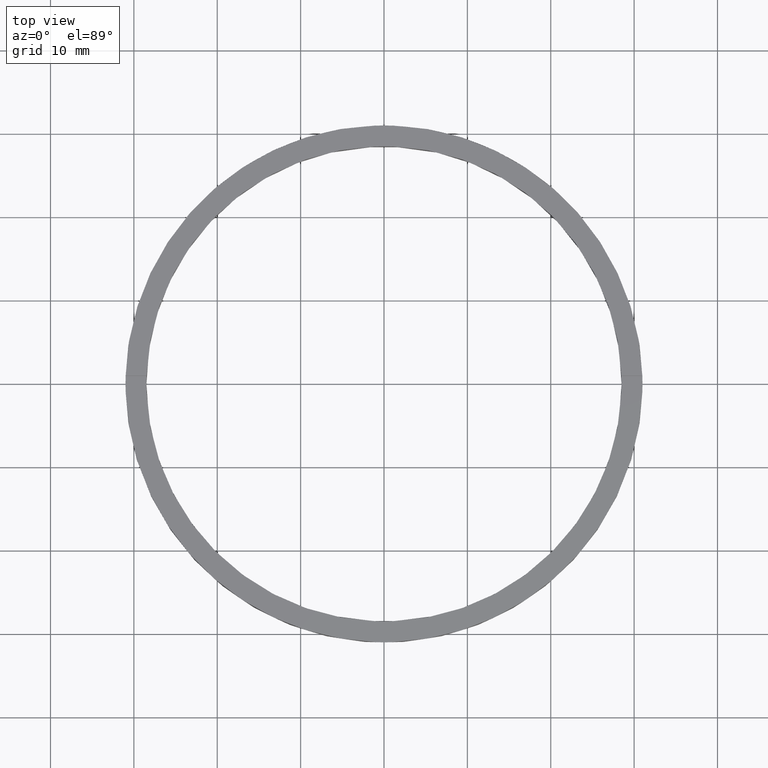
[diagram: clean part render]
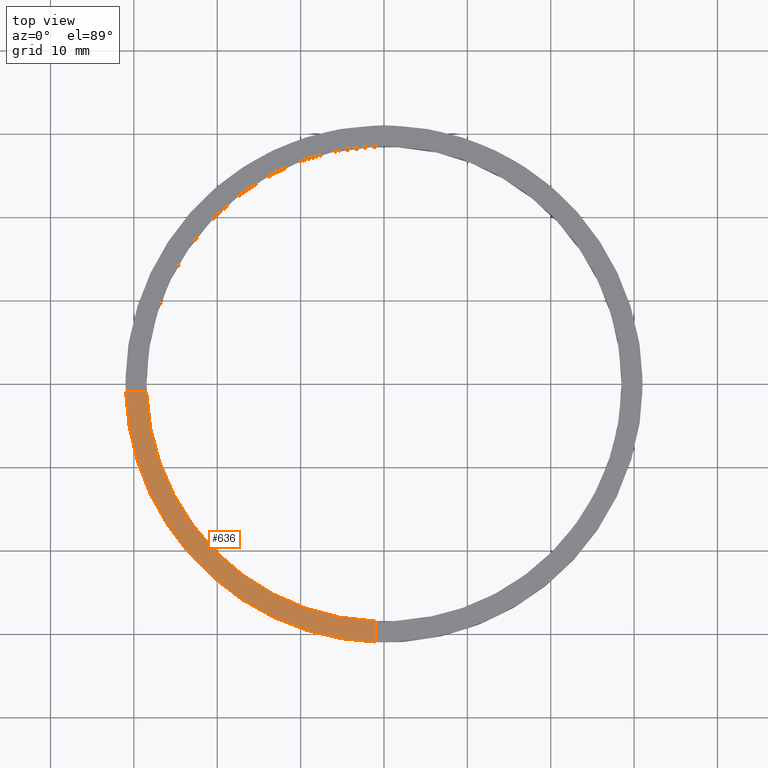
[diagram: same view with one face highlighted and labeled with its STEP entity id]
A machine part, top view. The second image highlights one B-rep face of the part: STEP entity #636.
In plain terms, the highlighted planar face has unit normal (0, 0, 1).
Its self-contained STEP definition (entity closure, byte-faithful):
#16 = CARTESIAN_POINT ( 'NONE',  ( -1.000000000000162759, -21.00000000000017764, 3.000000000000000000 ) ) ;
#24 = AXIS2_PLACEMENT_3D ( 'NONE', #273, #780, #117 ) ;
#69 = VERTEX_POINT ( 'NONE', #466 ) ;
#90 = CARTESIAN_POINT ( 'NONE',  ( -1.000000000000161871, -28.48245073725222554, 3.000000000000000000 ) ) ;
#101 = CARTESIAN_POINT ( 'NONE',  ( -28.48245073725222909, -1.000000000000025091, 3.000000000000000000 ) ) ;
#117 = DIRECTION ( 'NONE',  ( 1.000000000000000000, 0.000000000000000000, 0.000000000000000000 ) ) ;
#125 = EDGE_CURVE ( 'NONE', #397, #654, #288, .T. ) ;
#130 = DIRECTION ( 'NONE',  ( 1.301042606982605074E-16, -1.000000000000000000, 0.000000000000000000 ) ) ;
#161 = VECTOR ( 'NONE', #624, 1000.000000000000000 ) ;
#172 = LINE ( 'NONE', #585, #161 ) ;
#175 = AXIS2_PLACEMENT_3D ( 'NONE', #276, #219, #380 ) ;
#179 = EDGE_CURVE ( 'NONE', #69, #409, #550, .T. ) ;
#219 = DIRECTION ( 'NONE',  ( 0.000000000000000000, 0.000000000000000000, 1.000000000000000000 ) ) ;
#224 = ORIENTED_EDGE ( 'NONE', *, *, #501, .F. ) ;
#273 = CARTESIAN_POINT ( 'NONE',  ( 0.000000000000000000, 0.000000000000000000, 3.000000000000000000 ) ) ;
#274 = CARTESIAN_POINT ( 'NONE',  ( 0.000000000000000000, 0.000000000000000000, 3.000000000000000000 ) ) ;
#276 = CARTESIAN_POINT ( 'NONE',  ( 0.000000000000000000, 0.000000000000000000, 3.000000000000000000 ) ) ;
#288 = CIRCLE ( 'NONE', #175, 28.50000000000000000 ) ;
#377 = DIRECTION ( 'NONE',  ( 0.000000000000000000, 0.000000000000000000, 1.000000000000000000 ) ) ;
#380 = DIRECTION ( 'NONE',  ( 1.000000000000000000, 0.000000000000000000, 0.000000000000000000 ) ) ;
#397 = VERTEX_POINT ( 'NONE', #101 ) ;
#409 = VERTEX_POINT ( 'NONE', #472 ) ;
#410 = EDGE_LOOP ( 'NONE', ( #224, #712, #471, #502 ) ) ;
#433 = VECTOR ( 'NONE', #130, 1000.000000000000000 ) ;
#451 = DIRECTION ( 'NONE',  ( 1.000000000000000000, 0.000000000000000000, -0.000000000000000000 ) ) ;
#466 = CARTESIAN_POINT ( 'NONE',  ( -30.98386676965933617, -1.000000000000025535, 3.000000000000000000 ) ) ;
#471 = ORIENTED_EDGE ( 'NONE', *, *, #510, .F. ) ;
#472 = CARTESIAN_POINT ( 'NONE',  ( -1.000000000000161426, -30.98386676965932907, 3.000000000000000000 ) ) ;
#501 = EDGE_CURVE ( 'NONE', #654, #409, #686, .T. ) ;
#502 = ORIENTED_EDGE ( 'NONE', *, *, #179, .T. ) ;
#510 = EDGE_CURVE ( 'NONE', #69, #397, #172, .T. ) ;
#550 = CIRCLE ( 'NONE', #24, 31.00000000000000000 ) ;
#585 = CARTESIAN_POINT ( 'NONE',  ( -21.00000000000018119, -1.000000000000023759, 3.000000000000000000 ) ) ;
#623 = PLANE ( 'NONE',  #782 ) ;
#624 = DIRECTION ( 'NONE',  ( 1.000000000000000000, 1.951563910473907735E-16, -0.000000000000000000 ) ) ;
#636 = ADVANCED_FACE ( 'NONE', ( #675 ), #623, .T. ) ;
#654 = VERTEX_POINT ( 'NONE', #90 ) ;
#675 = FACE_OUTER_BOUND ( 'NONE', #410, .T. ) ;
#686 = LINE ( 'NONE', #16, #433 ) ;
#712 = ORIENTED_EDGE ( 'NONE', *, *, #125, .F. ) ;
#780 = DIRECTION ( 'NONE',  ( 0.000000000000000000, 0.000000000000000000, 1.000000000000000000 ) ) ;
#782 = AXIS2_PLACEMENT_3D ( 'NONE', #274, #377, #451 ) ;